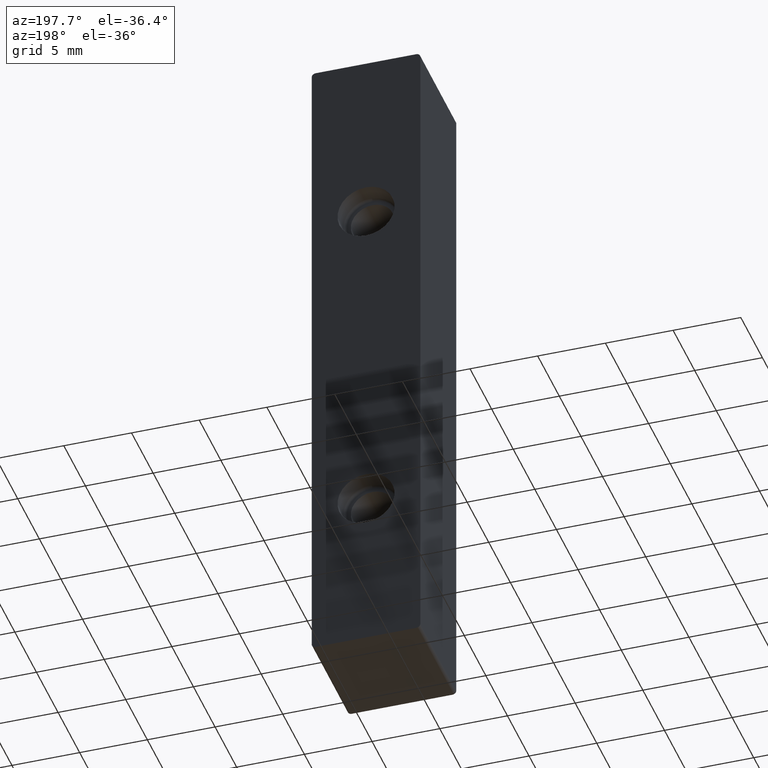
[diagram: clean part render]
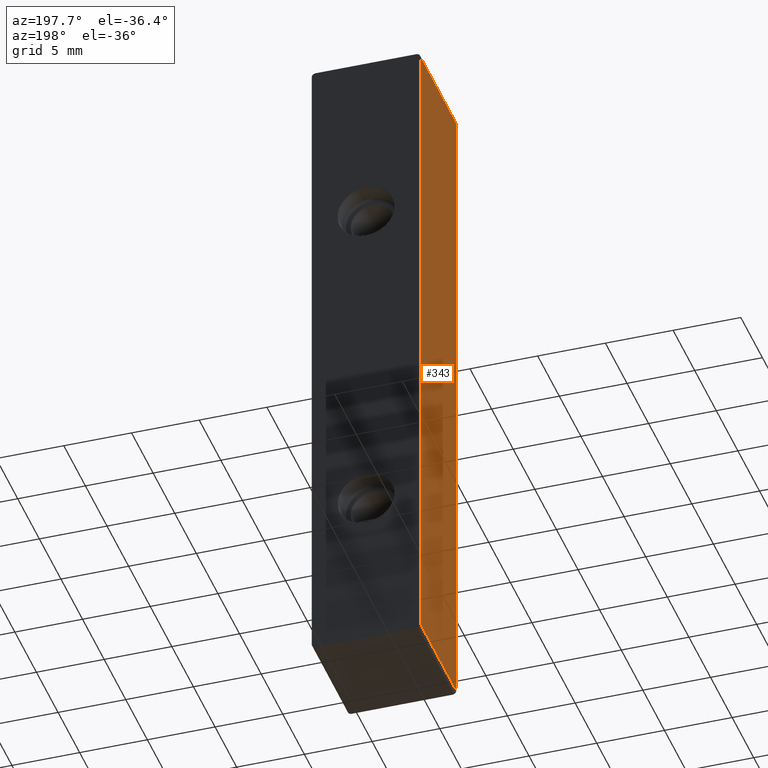
[diagram: same view with one face highlighted and labeled with its STEP entity id]
A machine part, auxiliary view. The second image highlights one B-rep face of the part: STEP entity #343.
In plain terms, the highlighted planar face has unit normal (-1, 0, 0).
Its self-contained STEP definition (entity closure, byte-faithful):
#37=FACE_OUTER_BOUND('',#60,.T.);
#60=EDGE_LOOP('',(#258,#259,#260,#261));
#83=LINE('',#545,#108);
#93=LINE('',#577,#118);
#94=LINE('',#581,#119);
#95=LINE('',#582,#120);
#108=VECTOR('',#432,10.);
#118=VECTOR('',#460,9.8814229);
#119=VECTOR('',#465,9.8814229);
#120=VECTOR('',#466,9.8814229);
#155=VERTEX_POINT('',#541);
#157=VERTEX_POINT('',#544);
#170=VERTEX_POINT('',#576);
#171=VERTEX_POINT('',#580);
#188=EDGE_CURVE('',#157,#155,#83,.T.);
#204=EDGE_CURVE('',#157,#170,#93,.T.);
#206=EDGE_CURVE('',#155,#171,#94,.T.);
#207=EDGE_CURVE('',#170,#171,#95,.T.);
#258=ORIENTED_EDGE('',*,*,#188,.T.);
#259=ORIENTED_EDGE('',*,*,#206,.T.);
#260=ORIENTED_EDGE('',*,*,#207,.F.);
#261=ORIENTED_EDGE('',*,*,#204,.F.);
#330=PLANE('',#395);
#343=ADVANCED_FACE('',(#37),#330,.T.);
#395=AXIS2_PLACEMENT_3D('',#579,#463,#464);
#432=DIRECTION('',(2.65656556241314E-16,0.,1.));
#460=DIRECTION('',(0.,1.,0.));
#463=DIRECTION('center_axis',(-1.,0.,2.65656556241314E-16));
#464=DIRECTION('ref_axis',(2.65656556241314E-16,0.,1.));
#465=DIRECTION('',(0.,1.,0.));
#466=DIRECTION('',(2.65656556241314E-16,0.,1.));
#541=CARTESIAN_POINT('',(-27.0403864492975,2.56297272763272,-9.47180184812295));
#544=CARTESIAN_POINT('',(-27.0403864492975,2.56297272763272,-59.027137691623));
#545=CARTESIAN_POINT('',(-27.0403864492975,2.56297272763272,-46.638303730748));
#576=CARTESIAN_POINT('',(-27.0403864492975,10.8896525467827,-59.027137691623));
#577=CARTESIAN_POINT('',(-27.0403864492975,1.86297272763272,-59.027137691623));
#579=CARTESIAN_POINT('Origin',(-27.0403864492975,1.86297272763272,-59.027137691623));
#580=CARTESIAN_POINT('',(-27.0403864492975,10.8896525467827,-9.47180184812295));
#581=CARTESIAN_POINT('',(-27.0403864492975,1.86297272763272,-9.47180184812295));
#582=CARTESIAN_POINT('',(-27.0403864492975,10.8896525467827,-9.47180184812295));